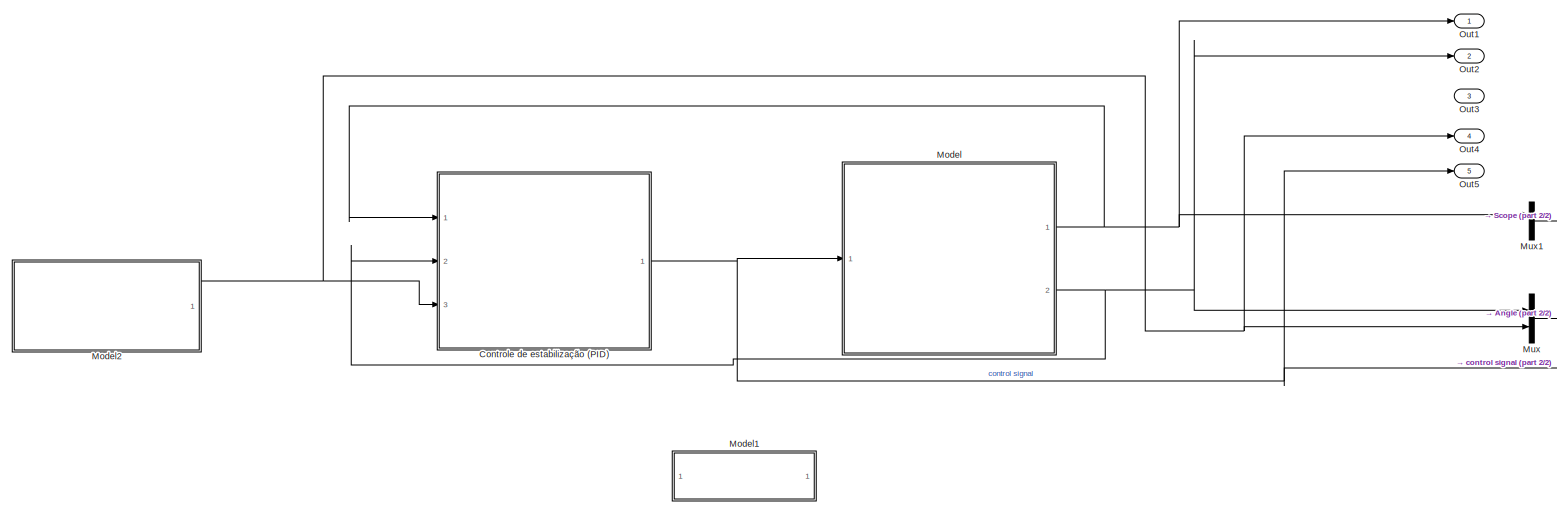
[diagram: root canvas - part 1/2, most of the canvas]
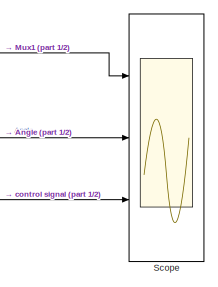
[diagram: root canvas - part 2/2, middle right region]
MODEL slx_bd4ff55d6dea
KIND model
CONFIG AbsTol = auto
CONFIG EnableMultiTasking = on
CONFIG FixedStep = auto
CONFIG MaxStep = auto
CONFIG MinStep = auto
CONFIG RelTol = 1e-6
CONFIG SampleTimeConstraint = Unconstrained
CONFIG Solver = ode45
CONFIG SolverName = ode45
CONFIG StartTime = 0.0
CONFIG StopTime = 10
BLOCK [ModelReference] Controle de estabilização (PID)
  ModelNameDialog = exemplo_bloco_controle_PID.slx
  ModelReferenceVersion = 1.106
  Ports = [3, 1]
BLOCK [ModelReference] Model
  ModelNameDialog = exemplo_bloco_modelo.slx
  ModelReferenceVersion = 1.118
  Ports = [1, 2]
BLOCK [ModelReference] Model1
  ModelNameDialog = exemplo_bloco_Sensor.slx
  ModelReferenceVersion = 1.5
  Ports = [1, 1]
BLOCK [ModelReference] Model2
  ModelNameDialog = exemplo_bloco_Sinal.slx
  ModelReferenceVersion = 1.16
  Ports = [0, 1]
BLOCK [Mux] Mux
  DisplayOption = bar
  Inputs = 2
  Ports = [2, 1]
BLOCK [Mux] Mux1
  DisplayOption = bar
  Inputs = 2
  Ports = [2, 1]
BLOCK [Outport] Out1
  IconDisplay = Port number
BLOCK [Outport] Out2
  IconDisplay = Port number
  Port = 2
BLOCK [Outport] Out3
  IconDisplay = Port number
  Port = 3
BLOCK [Outport] Out4
  IconDisplay = Port number
  Port = 4
BLOCK [Outport] Out5
  IconDisplay = Port number
  Port = 5
BLOCK [Scope] Scope
  Floating = off
  NumInputPorts = 3
  Ports = [3]
  ScopeSpecificationString = C++SS(StrPVP('Location','[10, 60, 1930, 1034]'),StrPVP('Open','off'),StrPVP('ZoomMode','yonly'),MxPVP('AxesTitles',53,'struct(''axes1'',''%<SignalLabel>'',''axes2'',''%<SignalLabel>'',''axes3'',''%<SignalLabel>'')'),MxPVP('ScopeGraphics',56,'struct(''FigureColor'',''[0.501960784313725 0.501960784313725 0.501960784313725]'',''AxesColor'',''[0 0 0]'',''AxesTickColor'',''[1 1 1]'',''LineColors'',''[1...<+451ch>
NET Controle de estabilização (PID):1 -> Model:1, Out5:1, Scope:3
NET Model2:1 -> Controle de estabilização (PID):3, Mux:2, Out4:1
NET Model:1 -> Controle de estabilização (PID):1, Mux1:1, Out1:1
NET Model:2 -> Controle de estabilização (PID):2, Mux:1, Out2:1
LINE Mux1:1 -> Scope:1
LINE Mux:1 -> Scope:2
note: NET lines group one-source signal fan-out (src -> all destinations, sorted); 1:1 wires keep LINE
